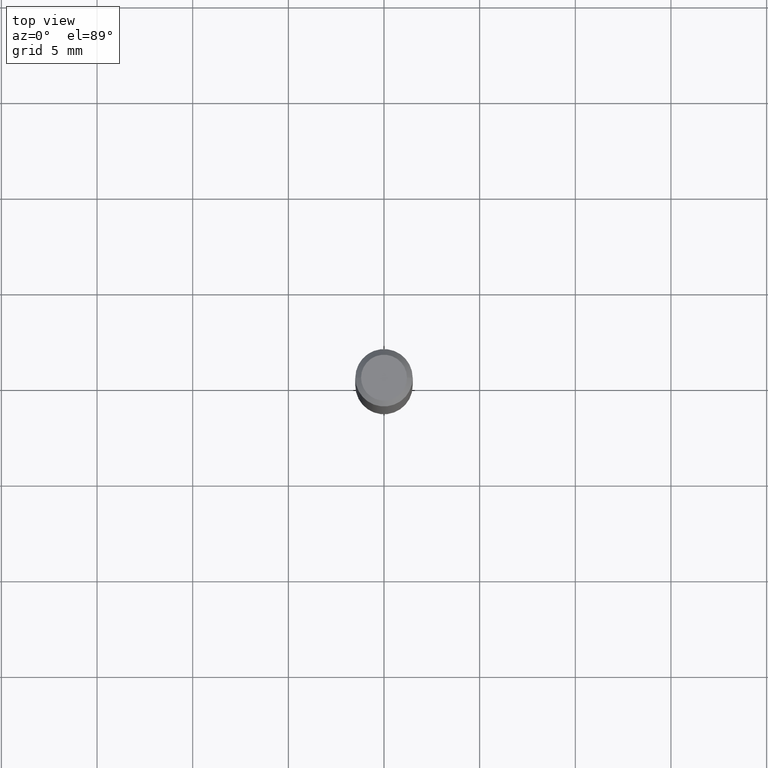
[diagram: clean part render]
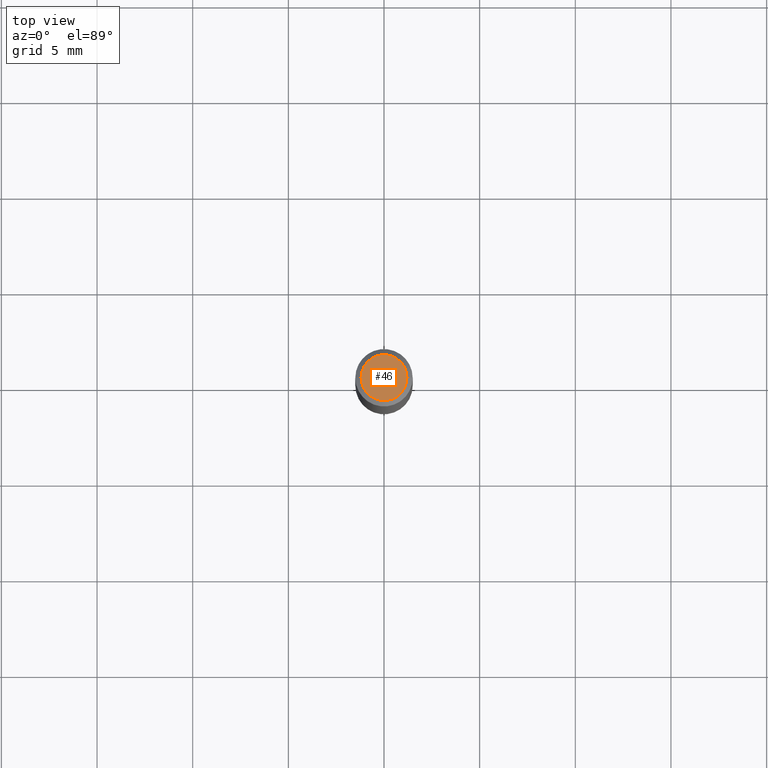
[diagram: same view with one face highlighted and labeled with its STEP entity id]
A machine part, top view. The second image highlights one B-rep face of the part: STEP entity #46.
In plain terms, the highlighted planar face has unit normal (0, -0, -1).
Its self-contained STEP definition (entity closure, byte-faithful):
#10 = FACE_OUTER_BOUND ( 'NONE', #331, .T. ) ;
#41 = EDGE_CURVE ( 'NONE', #82, #462, #49, .T. ) ;
#46 = ADVANCED_FACE ( 'NONE', ( #10 ), #426, .F. ) ;
#49 = CIRCLE ( 'NONE', #87, 0.04724000000000000421 ) ;
#82 = VERTEX_POINT ( 'NONE', #243 ) ;
#87 = AXIS2_PLACEMENT_3D ( 'NONE', #159, #301, #478 ) ;
#144 = ORIENTED_EDGE ( 'NONE', *, *, #453, .T. ) ;
#159 = CARTESIAN_POINT ( 'NONE',  ( 8.265746106709734507E-48, -1.180129479067563789E-33, -3.380025165646692144E-19 ) ) ;
#194 = CIRCLE ( 'NONE', #466, 0.04724000000000000421 ) ;
#197 = CARTESIAN_POINT ( 'NONE',  ( 4.132873053354867254E-48, -5.900647395337818946E-34, -1.690012582823346072E-19 ) ) ;
#212 = DIRECTION ( 'NONE',  ( -1.000000000000000000, 6.982962677686265922E-15, -4.876176775795935793E-29 ) ) ;
#234 = CARTESIAN_POINT ( 'NONE',  ( -0.04724000000000000421, 3.504923541997677355E-16, -3.380025165670481712E-19 ) ) ;
#243 = CARTESIAN_POINT ( 'NONE',  ( 0.04724000000000000421, -3.852183633974369345E-16, -3.380025165621689721E-19 ) ) ;
#277 = DIRECTION ( 'NONE',  ( 1.000000000000000000, -6.982962677686266711E-15, 4.876185090822587894E-29 ) ) ;
#301 = DIRECTION ( 'NONE',  ( -2.445468806185136597E-29, 3.491481338843145583E-15, 1.000000000000000000 ) ) ;
#331 = EDGE_LOOP ( 'NONE', ( #144, #370 ) ) ;
#344 = DIRECTION ( 'NONE',  ( 2.438088387897960049E-29, -3.491481338843145188E-15, -1.000000000000000000 ) ) ;
#359 = CARTESIAN_POINT ( 'NONE',  ( 8.265746106709734507E-48, -1.180129479067563789E-33, -3.380025165646692144E-19 ) ) ;
#370 = ORIENTED_EDGE ( 'NONE', *, *, #41, .T. ) ;
#426 = PLANE ( 'NONE',  #432 ) ;
#432 = AXIS2_PLACEMENT_3D ( 'NONE', #197, #344, #212 ) ;
#453 = EDGE_CURVE ( 'NONE', #462, #82, #194, .T. ) ;
#462 = VERTEX_POINT ( 'NONE', #234 ) ;
#466 = AXIS2_PLACEMENT_3D ( 'NONE', #359, #474, #277 ) ;
#474 = DIRECTION ( 'NONE',  ( -2.445468806185136597E-29, 3.491481338843145583E-15, 1.000000000000000000 ) ) ;
#478 = DIRECTION ( 'NONE',  ( 1.000000000000000000, -6.982962677686266711E-15, 4.876185090822587894E-29 ) ) ;